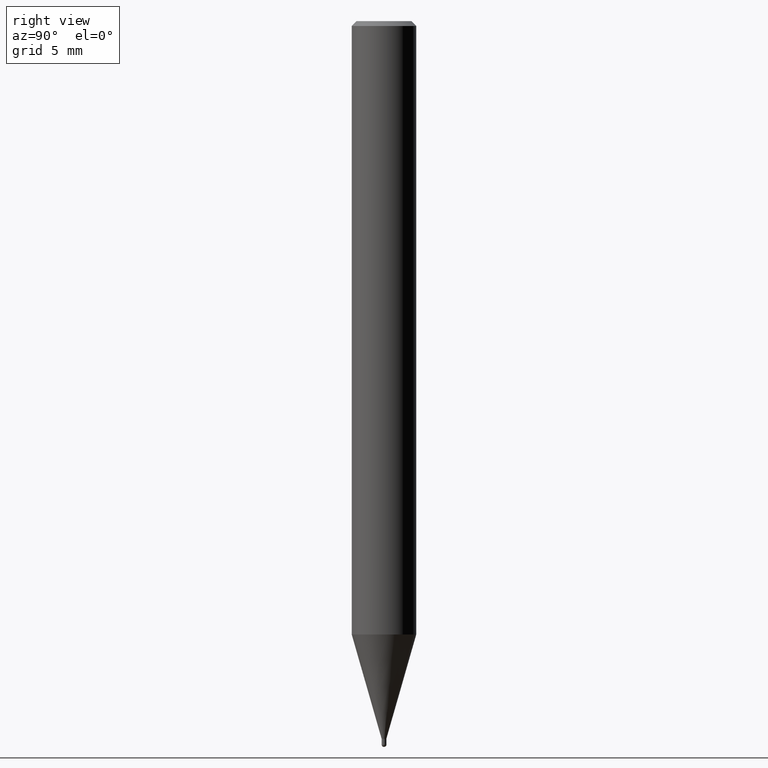
[diagram: clean part render]
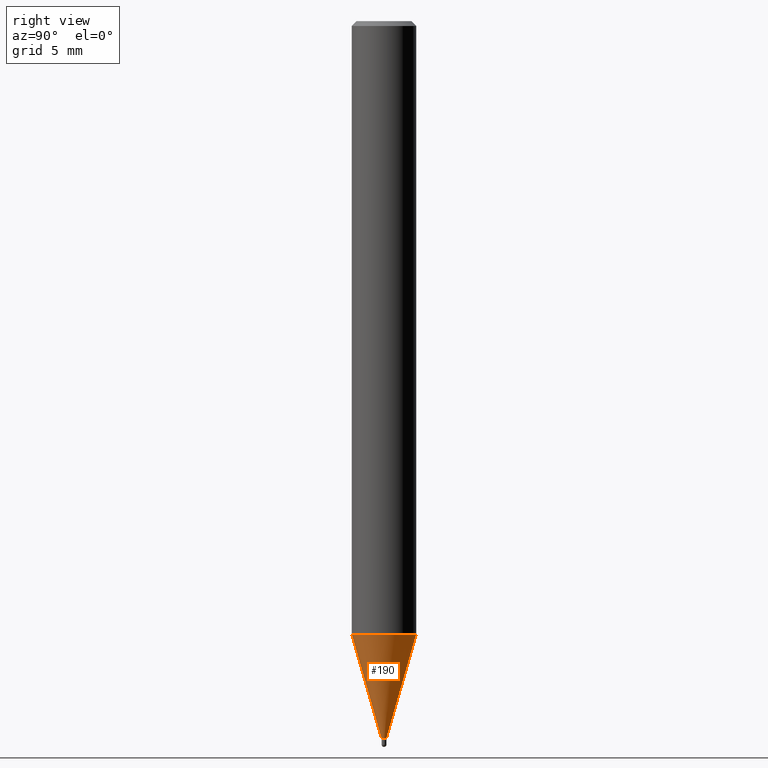
[diagram: same view with one face highlighted and labeled with its STEP entity id]
A machine part, right view. The second image highlights one B-rep face of the part: STEP entity #190.
In plain terms, the highlighted conical surface has half-angle 16 deg.
Its self-contained STEP definition (entity closure, byte-faithful):
#94=VERTEX_POINT('',#235);
#112=VERTEX_POINT('',#254);
#120=EDGE_CURVE('',#94,#180,#264,.T.);
#132=EDGE_CURVE('',#166,#180,#277,.T.);
#144=EDGE_CURVE('',#112,#166,#291,.T.);
#166=VERTEX_POINT('',#315);
#180=VERTEX_POINT('',#333);
#188=EDGE_CURVE('',#94,#112,#342,.T.);
#190=ADVANCED_FACE('',(#344),#345,.T.);
#235=CARTESIAN_POINT('',(0.0,1.99995,-38.031));
#254=CARTESIAN_POINT('',(0.0,0.14495,-44.5));
#264=CIRCLE('',#422,1.99995);
#277=LINE('',#438,#439);
#291=CIRCLE('',#456,0.14495);
#315=CARTESIAN_POINT('',(1.77506690986553E-017,-0.14495,-44.5));
#333=CARTESIAN_POINT('',(2.44915147732706E-016,-1.99995,-38.031));
#342=LINE('',#517,#518);
#344=FACE_OUTER_BOUND('',#520,.T.);
#345=CONICAL_SURFACE('',#521,1.07245,0.279258979430111);
#422=AXIS2_PLACEMENT_3D('',#590,#591,#592);
#438=CARTESIAN_POINT('',(1.31332908415681E-016,-1.07245,-41.2655));
#439=VECTOR('',#605,1.0);
#456=AXIS2_PLACEMENT_3D('',#626,#627,#628);
#517=CARTESIAN_POINT('',(-1.31332908415681E-016,1.07245,-41.2655));
#518=VECTOR('',#697,1.0);
#520=EDGE_LOOP('',(#699,#700,#701,#702));
#521=AXIS2_PLACEMENT_3D('',#703,#704,#705);
#590=CARTESIAN_POINT('',(0.0,0.0,-38.031));
#591=DIRECTION('',(0.0,0.0,-1.0));
#592=DIRECTION('',(0.0,1.0,0.0));
#605=DIRECTION('',(3.37554672384358E-017,-0.275643410905672,0.961259959648943));
#626=CARTESIAN_POINT('',(0.0,0.0,-44.5));
#627=DIRECTION('',(0.0,0.0,-1.0));
#628=DIRECTION('',(0.0,1.0,0.0));
#697=DIRECTION('',(3.37554672384358E-017,-0.275643410905672,-0.961259959648943));
#699=ORIENTED_EDGE('',*,*,#188,.F.);
#700=ORIENTED_EDGE('',*,*,#120,.T.);
#701=ORIENTED_EDGE('',*,*,#132,.F.);
#702=ORIENTED_EDGE('',*,*,#144,.F.);
#703=CARTESIAN_POINT('',(0.0,0.0,-41.2655));
#704=DIRECTION('',(-0.0,-0.0,1.0));
#705=DIRECTION('',(0.0,1.0,0.0));